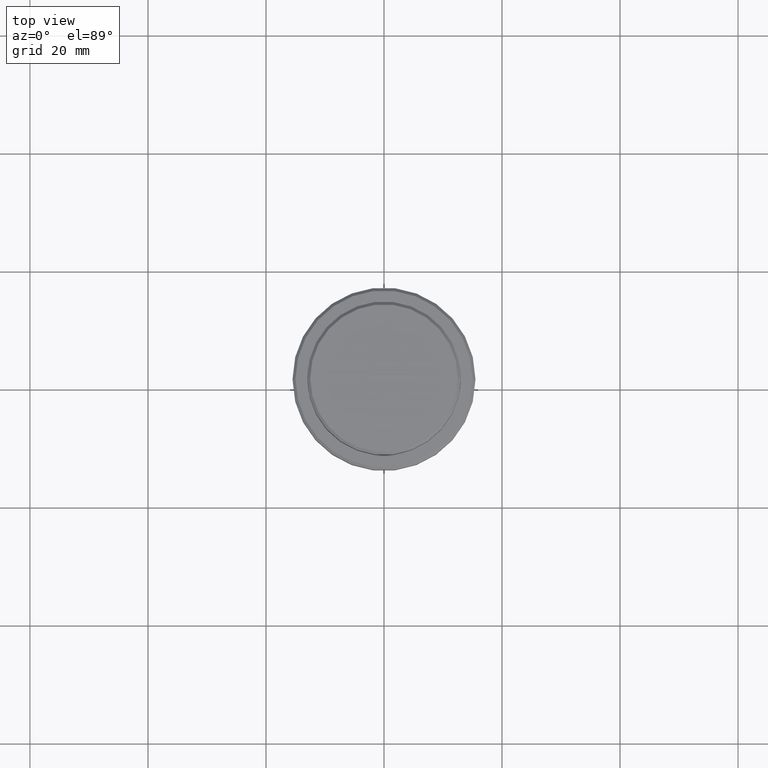
[diagram: clean part render]
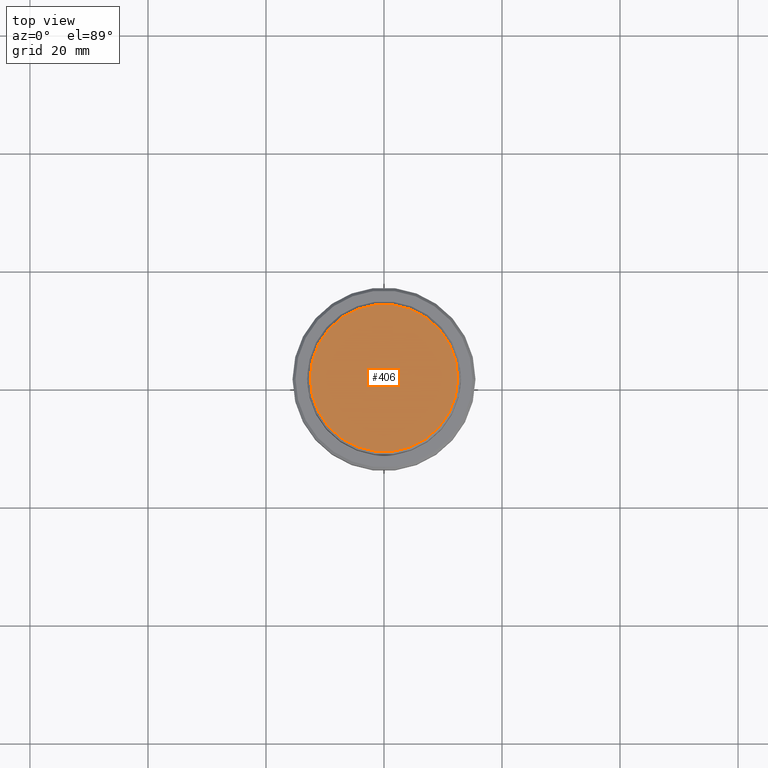
[diagram: same view with one face highlighted and labeled with its STEP entity id]
A machine part, top view. The second image highlights one B-rep face of the part: STEP entity #406.
In plain terms, the highlighted planar face has unit normal (0, -0, 1).
Its self-contained STEP definition (entity closure, byte-faithful):
#6 = DIRECTION ( 'NONE',  ( 0.000000000000000000, -0.000000000000000000, 1.000000000000000000 ) ) ;
#194 = VERTEX_POINT ( 'NONE', #243 ) ;
#243 = CARTESIAN_POINT ( 'NONE',  ( 12.50000000000001243, 1.561424668912876097E-15, 0.000000000000000000 ) ) ;
#286 = DIRECTION ( 'NONE',  ( 1.000000000000000000, 0.000000000000000000, 0.000000000000000000 ) ) ;
#305 = DIRECTION ( 'NONE',  ( -0.000000000000000000, -0.000000000000000000, 1.000000000000000000 ) ) ;
#370 = ORIENTED_EDGE ( 'NONE', *, *, #811, .T. ) ;
#406 = ADVANCED_FACE ( 'NONE', ( #667 ), #541, .T. ) ;
#452 = CARTESIAN_POINT ( 'NONE',  ( -12.50000000000001243, 0.000000000000000000, 0.000000000000000000 ) ) ;
#501 = ORIENTED_EDGE ( 'NONE', *, *, #1403, .T. ) ;
#541 = PLANE ( 'NONE',  #1082 ) ;
#546 = DIRECTION ( 'NONE',  ( -0.000000000000000000, -0.000000000000000000, 1.000000000000000000 ) ) ;
#667 = FACE_OUTER_BOUND ( 'NONE', #848, .T. ) ;
#705 = AXIS2_PLACEMENT_3D ( 'NONE', #1294, #546, #964 ) ;
#762 = CARTESIAN_POINT ( 'NONE',  ( 0.000000000000000000, 0.000000000000000000, 0.000000000000000000 ) ) ;
#811 = EDGE_CURVE ( 'NONE', #979, #194, #1292, .T. ) ;
#848 = EDGE_LOOP ( 'NONE', ( #370, #501 ) ) ;
#870 = DIRECTION ( 'NONE',  ( 1.000000000000000000, 0.000000000000000000, 0.000000000000000000 ) ) ;
#964 = DIRECTION ( 'NONE',  ( 1.000000000000000000, 0.000000000000000000, 0.000000000000000000 ) ) ;
#979 = VERTEX_POINT ( 'NONE', #452 ) ;
#1058 = CARTESIAN_POINT ( 'NONE',  ( 0.000000000000000000, 0.000000000000000000, 0.000000000000000000 ) ) ;
#1082 = AXIS2_PLACEMENT_3D ( 'NONE', #762, #6, #870 ) ;
#1118 = AXIS2_PLACEMENT_3D ( 'NONE', #1058, #305, #286 ) ;
#1174 = CIRCLE ( 'NONE', #1118, 12.50000000000001243 ) ;
#1292 = CIRCLE ( 'NONE', #705, 12.50000000000001243 ) ;
#1294 = CARTESIAN_POINT ( 'NONE',  ( 0.000000000000000000, 0.000000000000000000, 0.000000000000000000 ) ) ;
#1403 = EDGE_CURVE ( 'NONE', #194, #979, #1174, .T. ) ;